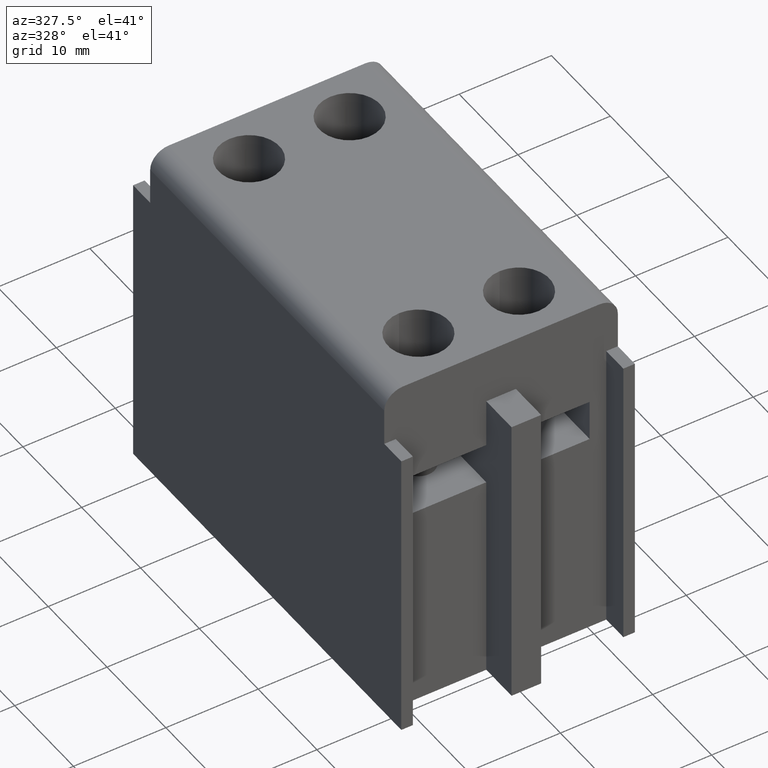
[diagram: clean part render]
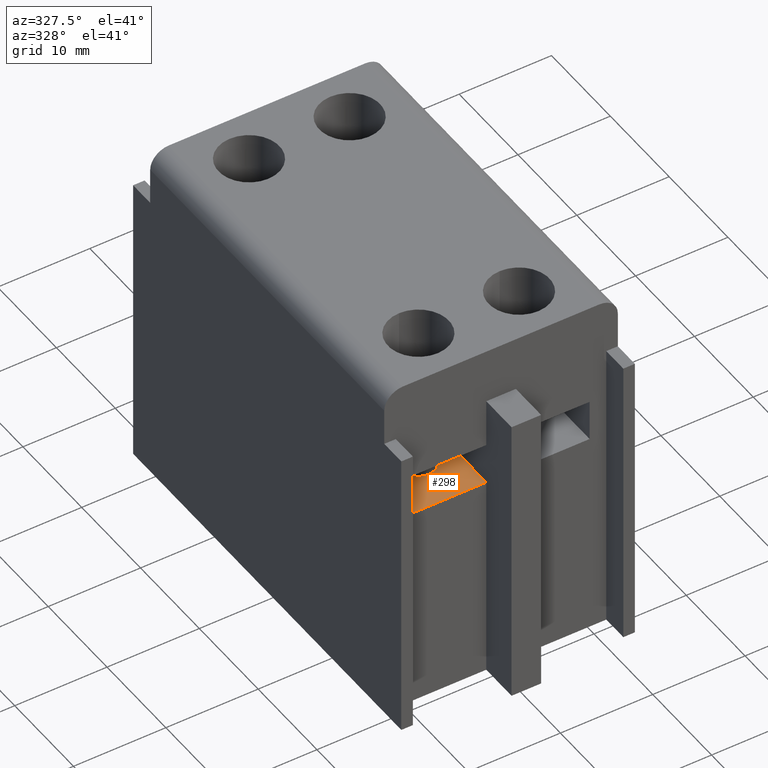
[diagram: same view with one face highlighted and labeled with its STEP entity id]
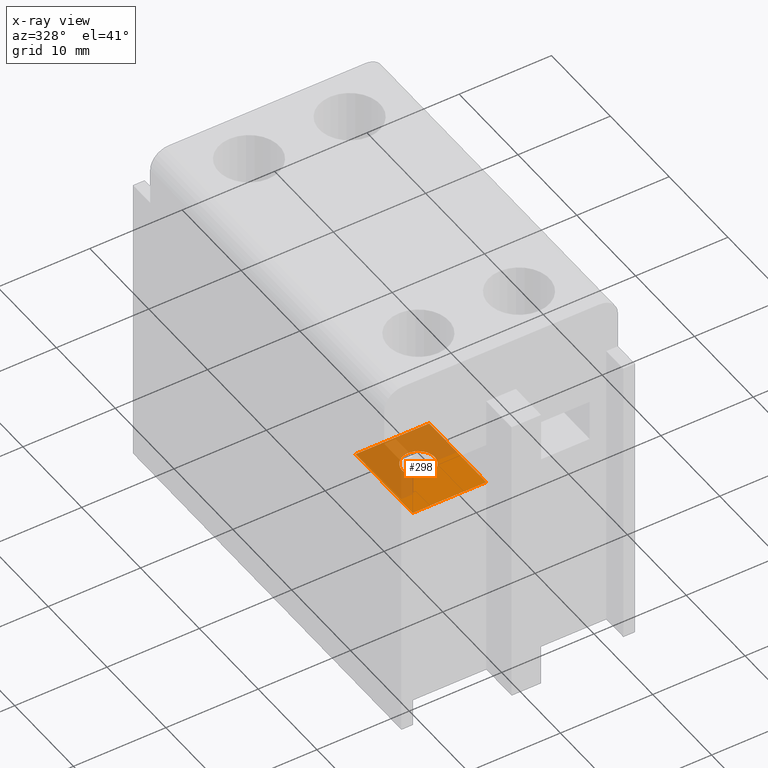
[diagram: x-ray of the same camera — body ghosted, the highlighted face saturated]
A machine part, auxiliary view. The second image highlights one B-rep face of the part: STEP entity #298.
The next image is the same camera in x-ray: the body ghosted, the highlighted face saturated — about 54% of this face is hidden behind the body in this view.
In plain terms, the highlighted planar face has unit normal (0, 0, 1).
Its self-contained STEP definition (entity closure, byte-faithful):
#238=CIRCLE('',#2682,1.75);
#298=ADVANCED_FACE('',(#557,#558),#435,.T.);
#435=PLANE('',#2683);
#557=FACE_BOUND('',#630,.T.);
#558=FACE_BOUND('',#631,.T.);
#630=EDGE_LOOP('',(#927));
#631=EDGE_LOOP('',(#928,#929,#930,#931));
#927=ORIENTED_EDGE('',*,*,#1825,.F.);
#928=ORIENTED_EDGE('',*,*,#1786,.F.);
#929=ORIENTED_EDGE('',*,*,#1821,.F.);
#930=ORIENTED_EDGE('',*,*,#1826,.T.);
#931=ORIENTED_EDGE('',*,*,#1827,.T.);
#1544=VERTEX_POINT('',#3685);
#1545=VERTEX_POINT('',#3687);
#1565=VERTEX_POINT('',#3749);
#1567=VERTEX_POINT('',#3761);
#1568=VERTEX_POINT('',#3763);
#1786=EDGE_CURVE('',#1544,#1545,#2121,.T.);
#1821=EDGE_CURVE('',#1565,#1544,#2155,.T.);
#1825=EDGE_CURVE('',#1567,#1567,#238,.T.);
#1826=EDGE_CURVE('',#1565,#1568,#2159,.T.);
#1827=EDGE_CURVE('',#1568,#1545,#2160,.T.);
#2121=LINE('',#3686,#2415);
#2155=LINE('',#3750,#2449);
#2159=LINE('',#3762,#2453);
#2160=LINE('',#3764,#2454);
#2415=VECTOR('',#2949,1.);
#2449=VECTOR('',#3001,1.);
#2453=VECTOR('',#3017,1.);
#2454=VECTOR('',#3018,1.);
#2682=AXIS2_PLACEMENT_3D('',#3760,#3015,#3016);
#2683=AXIS2_PLACEMENT_3D('',#3765,#3019,#3020);
#2949=DIRECTION('',(-1.,0.,0.));
#3001=DIRECTION('',(0.,-1.,0.));
#3015=DIRECTION('',(0.,0.,1.));
#3016=DIRECTION('',(-1.,0.,0.));
#3017=DIRECTION('',(-1.,0.,0.));
#3018=DIRECTION('',(0.,-1.,0.));
#3019=DIRECTION('',(0.,0.,1.));
#3020=DIRECTION('',(1.,0.,0.));
#3685=CARTESIAN_POINT('',(-1.6,-19.8999999999999,98.2));
#3686=CARTESIAN_POINT('',(-1.6,-19.9,98.2));
#3687=CARTESIAN_POINT('',(-9.6,-19.9,98.2));
#3749=CARTESIAN_POINT('',(-1.6,-10.1999999999999,98.2));
#3750=CARTESIAN_POINT('',(-1.6,-10.1999999999999,98.2));
#3760=CARTESIAN_POINT('',(-5.45000000000006,-14.3999999999999,98.2));
#3761=CARTESIAN_POINT('',(-7.20000000000006,-14.3999999999999,98.2));
#3762=CARTESIAN_POINT('',(-1.6,-10.2,98.2));
#3763=CARTESIAN_POINT('',(-9.6,-10.2,98.2));
#3764=CARTESIAN_POINT('',(-9.6,-10.2,98.2));
#3765=CARTESIAN_POINT('',(-1.6,-10.2,98.2));